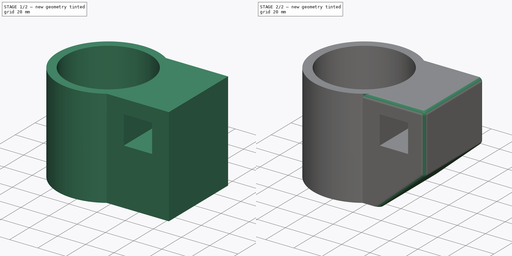
[diagram: build sequence overview — one tinted view per stage of 2, left to right]
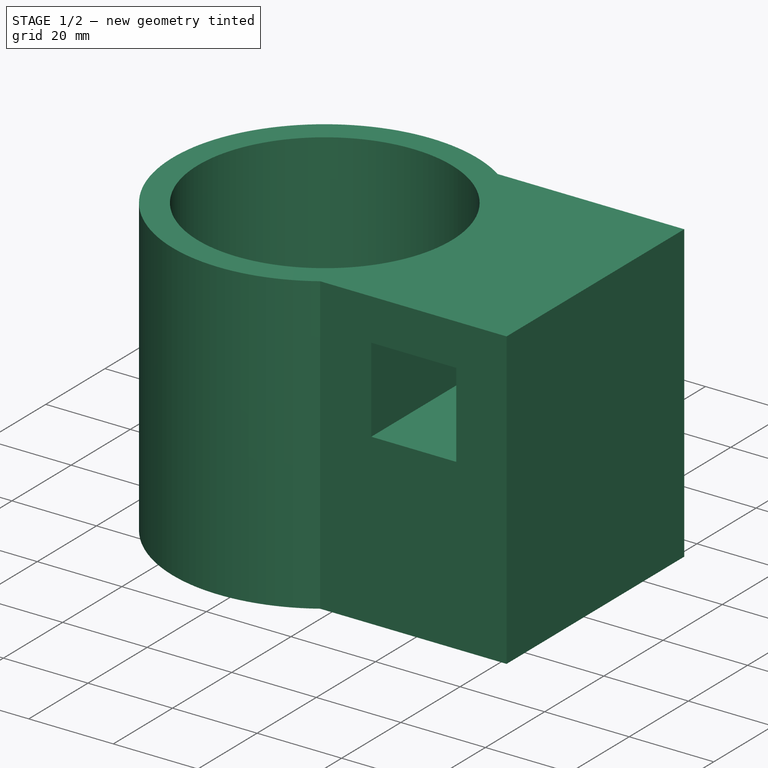
[diagram: stage 1 of 2 — iso view after this stage's code; geometry added in this stage tinted green]
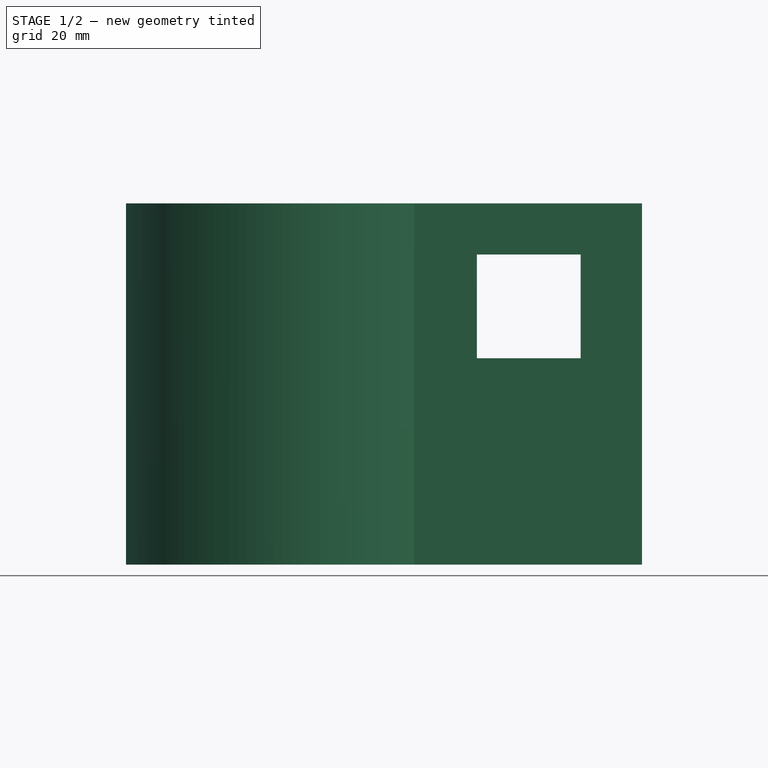
[diagram: stage 1 of 2 — front view after this stage's code; geometry added in this stage tinted green]
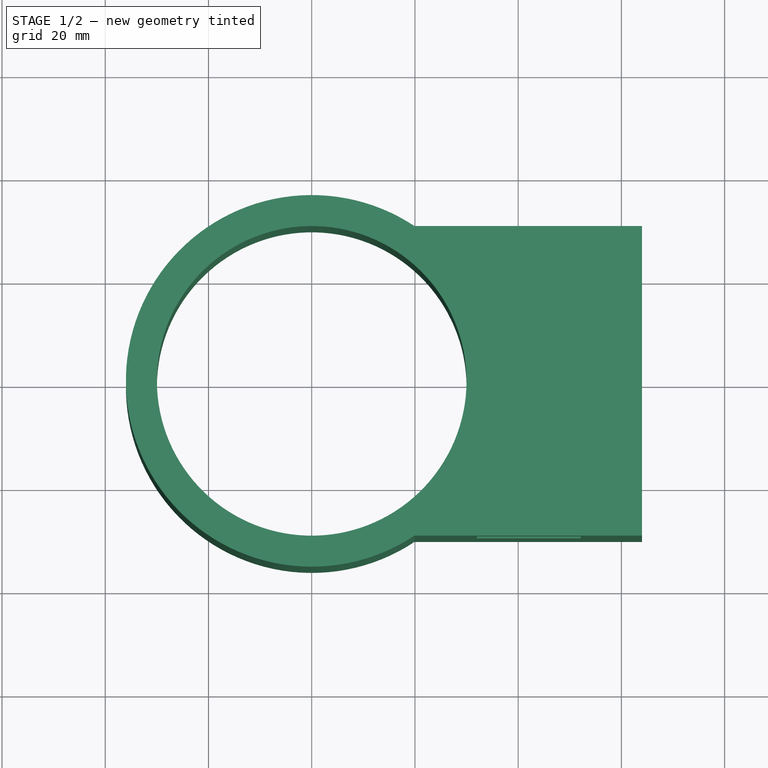
[diagram: stage 1 of 2 — top view after this stage's code; geometry added in this stage tinted green]
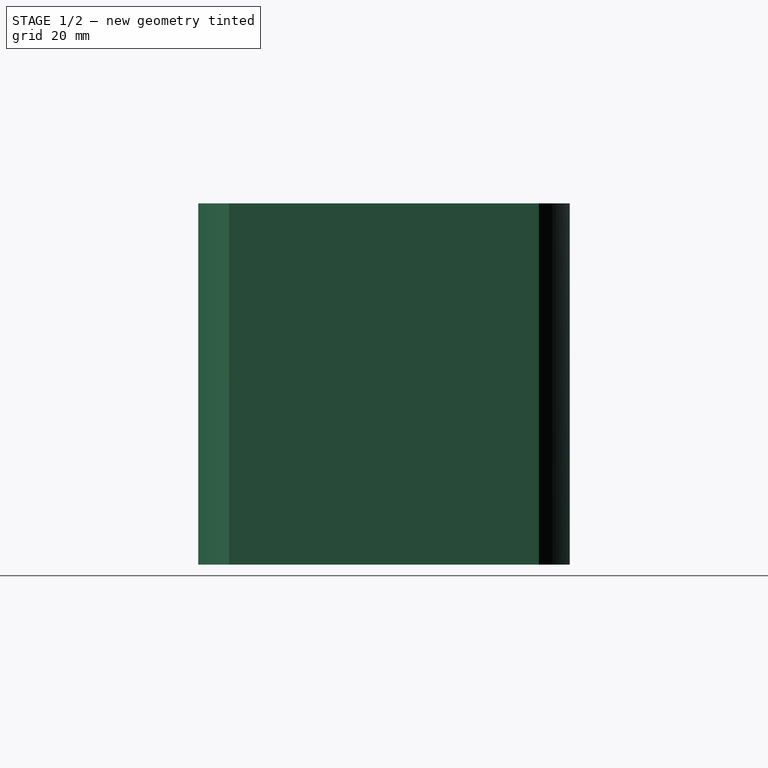
[diagram: stage 1 of 2 — right view after this stage's code; geometry added in this stage tinted green]
FCSTD DOCUMENT  (FreeCAD 0.18R4 (GitTag))
Label: helix_mount
License: All rights reserved
LicenseURL: http://en.wikipedia.org/wiki/All_rights_reserved
objects: Sketcher::SketchObject×3, PartDesign::Pocket×2, PartDesign::Pad×1, PartDesign::Fillet×1, PartDesign::Body×1
note: 11 computed .brp shape members not serialized (recipe doc carries the construction recipe); baked Part::Feature solids carry a one-line shape summary decoded from their .brp

FEATURE [Sketcher::SketchObject] Sketch
  MapMode = 5
  Support = -> [XY_Plane]
  sketch-geometry (5):
    g0: Circle CenterX=0 CenterY=0 CenterZ=0 NormalX=0 NormalY=0 NormalZ=1 AngleXU=0 Radius=30
    g1: ArcOfCircle CenterX=0 CenterY=0 CenterZ=0 NormalX=0 NormalY=0 NormalZ=1 AngleXU=0 Radius=36 StartAngle=0.985111 EndAngle=5.29807
    g2: LineSegment StartX=19.8997 StartY=30 StartZ=0 EndX=64 EndY=30 EndZ=0
    g3: LineSegment StartX=64 StartY=30 StartZ=0 EndX=64 EndY=-30 EndZ=0
    g4: LineSegment StartX=64 StartY=-30 StartZ=0 EndX=19.8997 EndY=-30 EndZ=0
  constraints (14):
    c: Coincident(g0,g-1)
    c: Coincident(g1,g0)
    c: Radius(g0) = 30
    c: Radius(g1) = 36
    c: DistanceY(g0,g1) = 30
    c: DistanceY(g1,g0) = 30
    c: Coincident(g2,g3)
    c: Coincident(g3,g4)
    c: Coincident(g2,g1)
    c: Coincident(g4,g1)
    c: Horizontal(g2)
    c: Horizontal(g4)
    c: Vertical(g3)
    c: DistanceX(g0,g2) = 64
FEATURE [PartDesign::Pad] Pad
  Length = 70
  Length2 = 100
  Profile = -> Sketch
  Type = 0
FEATURE [Sketcher::SketchObject] Sketch002
  MapMode = 5
  Placement = pos=(0,-30,0) rot=(1,0,0;1.5708rad)
  Support = -> [Pad]
  sketch-geometry (4):
    g0: LineSegment StartX=32 StartY=60.1 StartZ=0 EndX=52.1 EndY=60.1 EndZ=0
    g1: LineSegment StartX=52.1 StartY=60.1 StartZ=0 EndX=52.1 EndY=40 EndZ=0
    g2: LineSegment StartX=52.1 StartY=40 StartZ=0 EndX=32 EndY=40 EndZ=0
    g3: LineSegment StartX=32 StartY=40 StartZ=0 EndX=32 EndY=60.1 EndZ=0
  constraints (12):
    c: Coincident(g0,g1)
    c: Coincident(g1,g2)
    c: Coincident(g2,g3)
    c: Coincident(g3,g0)
    c: Horizontal(g0)
    c: Horizontal(g2)
    c: Vertical(g1)
    c: Vertical(g3)
    c: DistanceY(g1,g0) = 20.1
    c: DistanceX(g2,g1) = 20.1
    c: DistanceX(g-1,g2) = 32
    c: DistanceY(g-1,g2) = 40
FEATURE [PartDesign::Pocket] Pocket
  BaseFeature = -> Pad
  Length = 100
  Length2 = 100
  Profile = -> Sketch002
  Type = 0
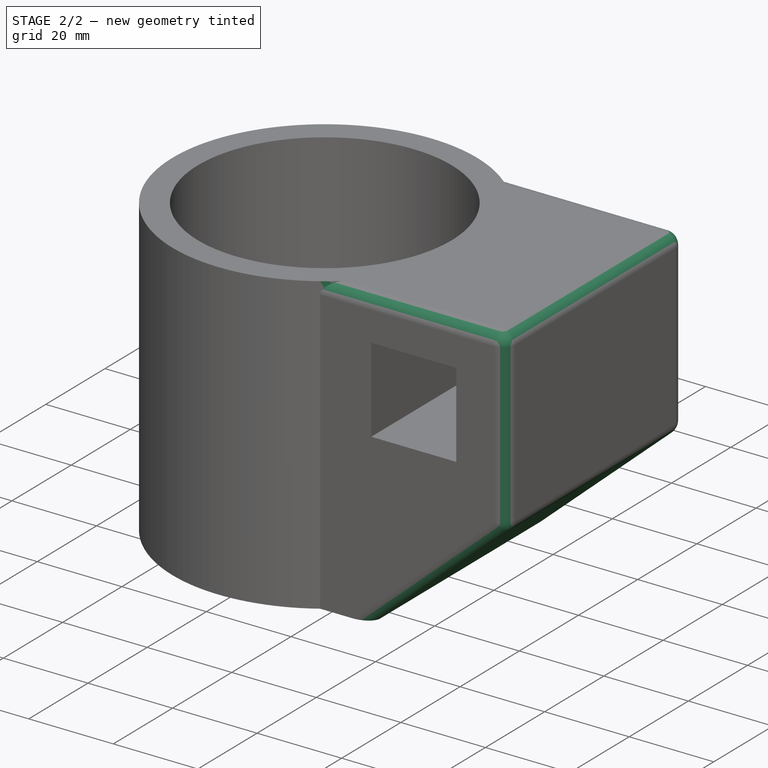
[diagram: stage 2 of 2 — iso view after this stage's code; geometry added in this stage tinted green]
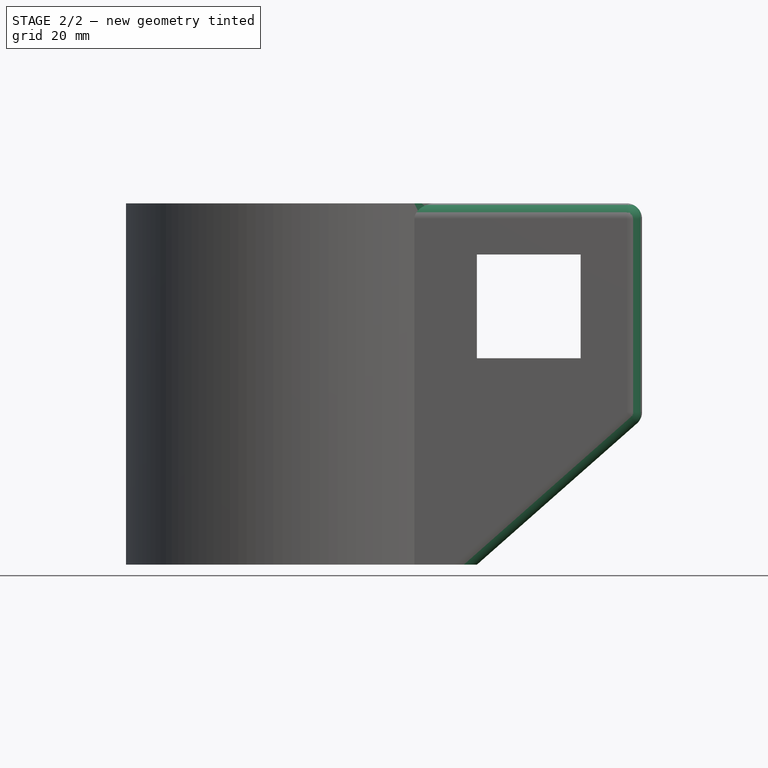
[diagram: stage 2 of 2 — front view after this stage's code; geometry added in this stage tinted green]
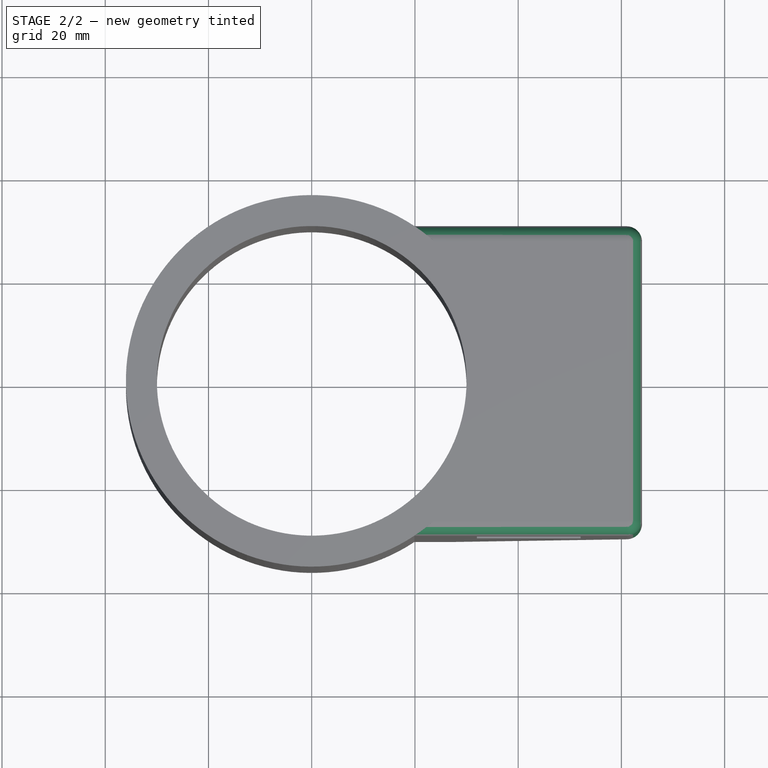
[diagram: stage 2 of 2 — top view after this stage's code; geometry added in this stage tinted green]
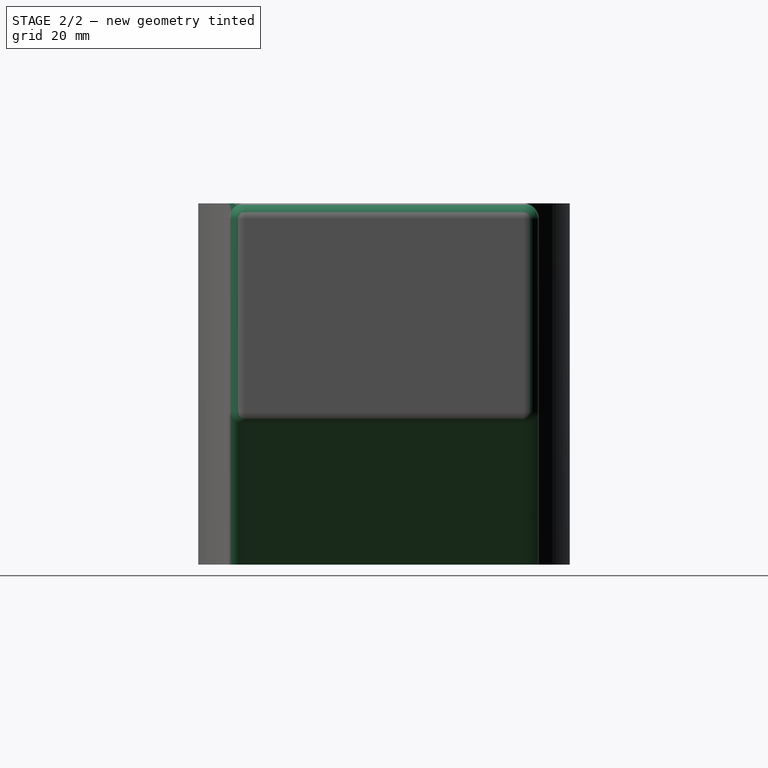
[diagram: stage 2 of 2 — right view after this stage's code; geometry added in this stage tinted green]
FEATURE [Sketcher::SketchObject] Sketch003
  MapMode = 5
  Placement = pos=(0,-30,0) rot=(1,0,0;1.5708rad)
  Support = -> [Pocket]
  sketch-geometry (3):
    g0: LineSegment StartX=66 StartY=30 StartZ=0 EndX=32 EndY=3.6e-15 EndZ=0
    g1: LineSegment StartX=32 StartY=7.1e-15 StartZ=0 EndX=66 EndY=7.1e-15 EndZ=0
    g2: LineSegment StartX=66 StartY=7.1e-15 StartZ=0 EndX=66 EndY=30 EndZ=0
  constraints (9):
    c: Coincident(g0,g1)
    c: Coincident(g1,g2)
    c: Coincident(g2,g0)
    c: DistanceY(g0,g-1) = 0
    c: DistanceX(g-1,g0) = 32
    c: DistanceX(g1,g1) = 34
    c: Horizontal(g1)
    c: Vertical(g2)
    c: DistanceY(g1,g0) = 30
FEATURE [PartDesign::Pocket] Pocket001
  BaseFeature = -> Pocket
  Length = 100
  Length2 = 100
  Profile = -> Sketch003
  Type = 0
FEATURE [PartDesign::Fillet] Fillet
  Base = -> Pocket001 [Edge16,Edge7,Edge23,Edge25,Edge6,Edge13,Edge15,Edge8]
  BaseFeature = -> Pocket001
  Radius = 3
FEATURE [PartDesign::Body] Body
  Group = -> [Sketch,Pad,Sketch002,Pocket,Sketch003,Pocket001,Fillet]
  Origin = -> Origin
  Tip = -> Fillet
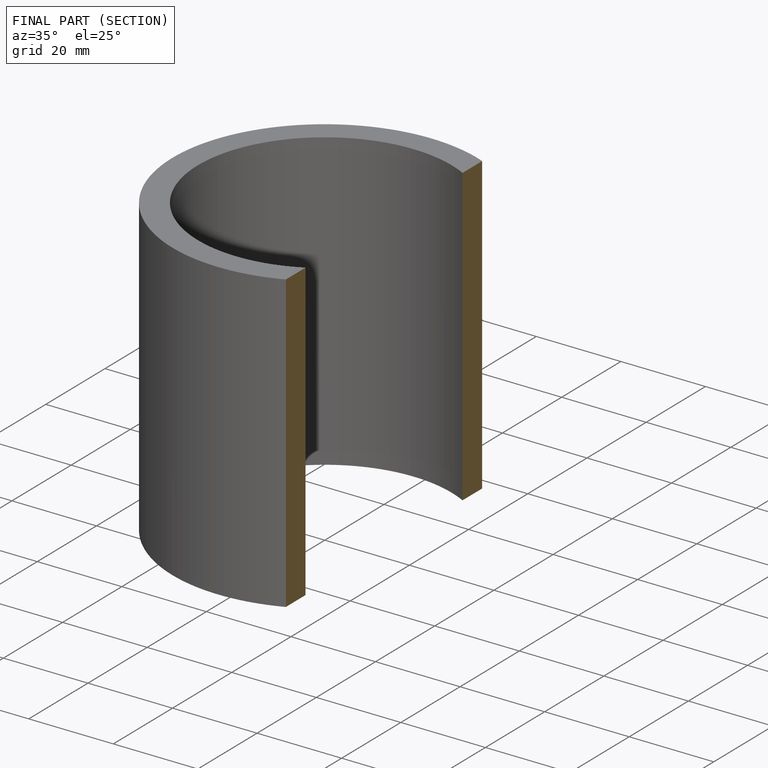
[diagram: finished part — half-section view (interior)]
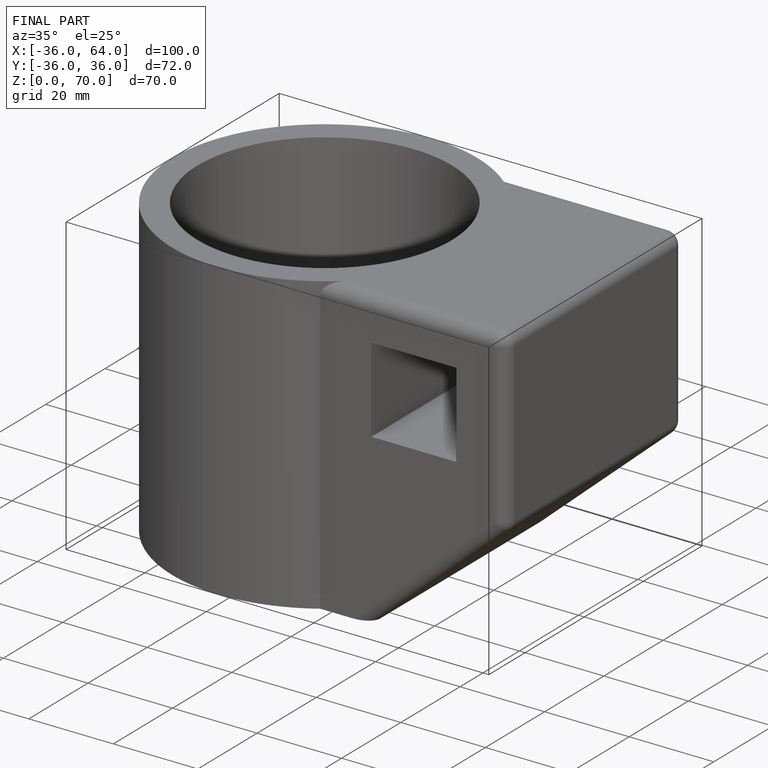
[diagram: finished part — iso view with bounding-box wireframe]
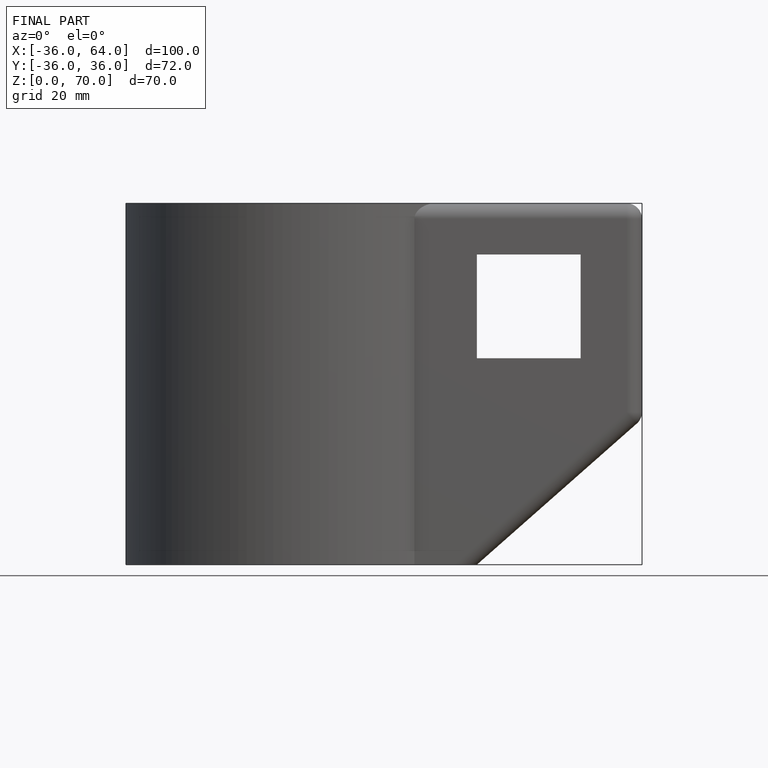
[diagram: finished part — front view with bounding-box wireframe]
